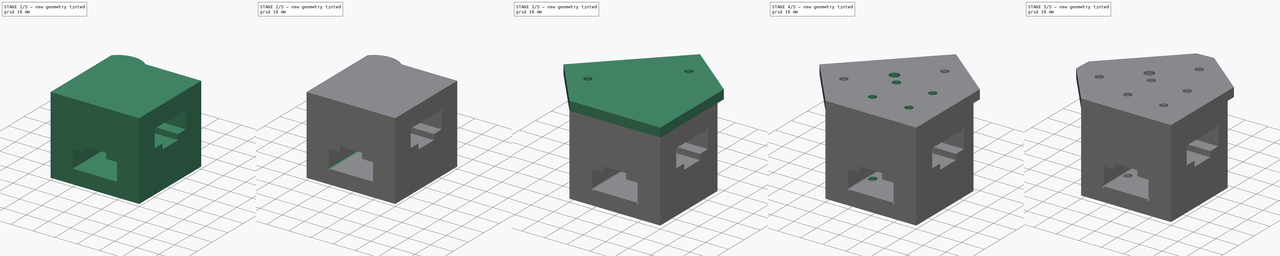
[diagram: build sequence overview — one tinted view per stage of 5, left to right]
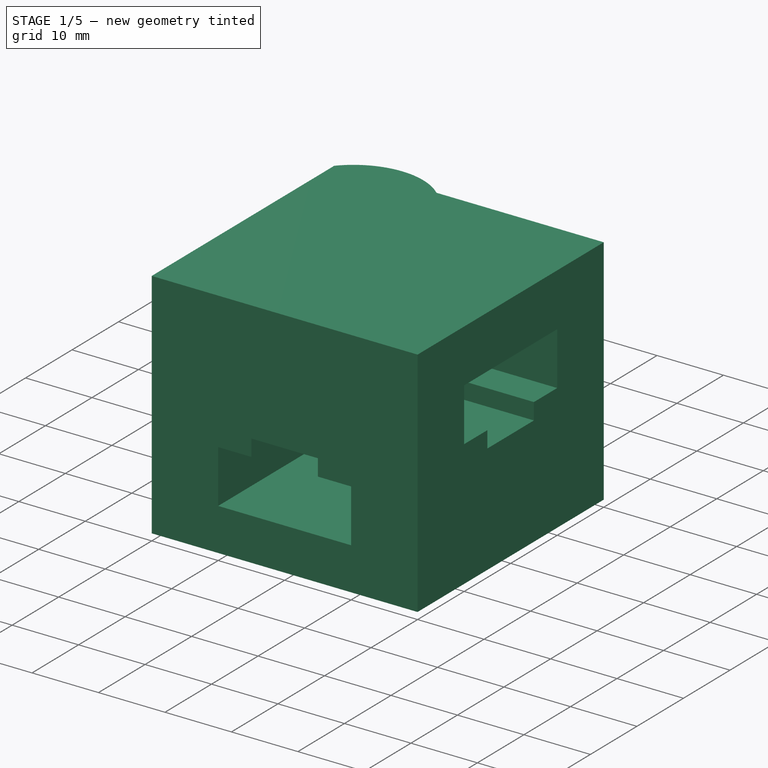
[diagram: stage 1 of 5 — iso view after this stage's code; geometry added in this stage tinted green]
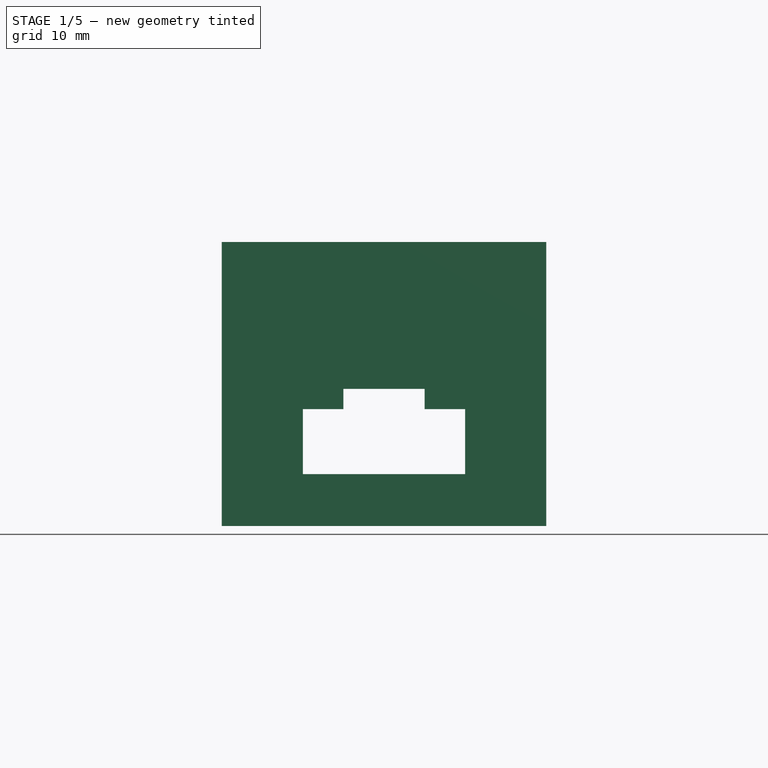
[diagram: stage 1 of 5 — front view after this stage's code; geometry added in this stage tinted green]
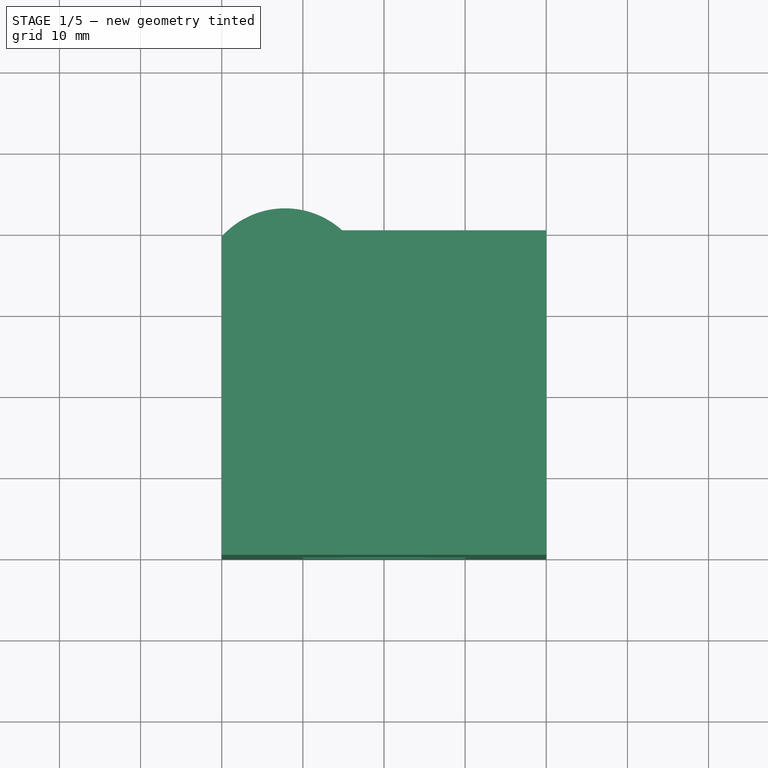
[diagram: stage 1 of 5 — top view after this stage's code; geometry added in this stage tinted green]
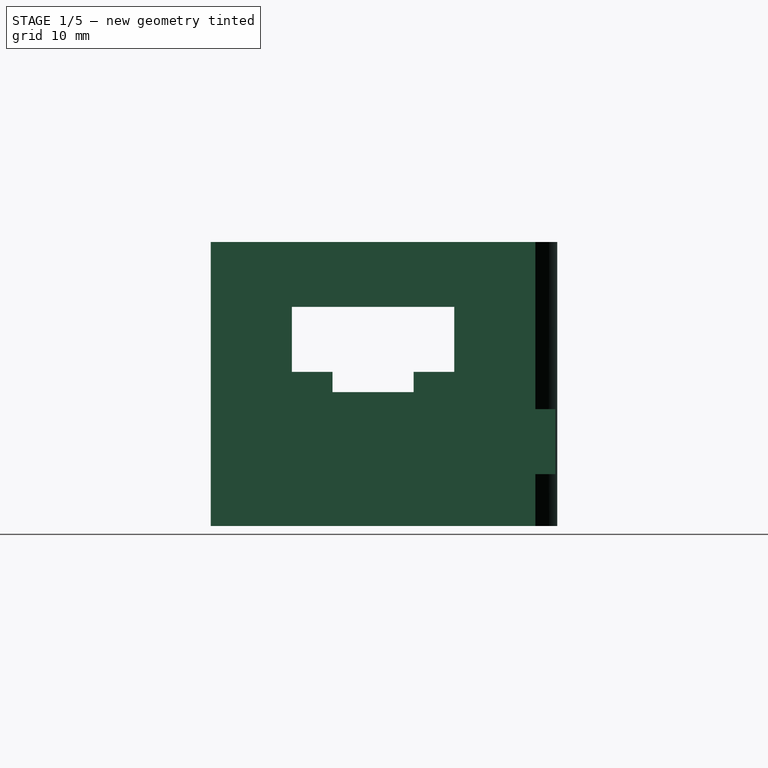
[diagram: stage 1 of 5 — right view after this stage's code; geometry added in this stage tinted green]
FCSTD DOCUMENT  (FreeCAD 0.19R)
Label: ToolHeadVoron3
License: All rights reserved
LicenseURL: http://en.wikipedia.org/wiki/All_rights_reserved
objects: Sketcher::SketchObject×16, PartDesign::Pocket×12, PartDesign::Pad×2, PartDesign::Chamfer×1, PartDesign::Body×1
note: 47 computed .brp shape members not serialized (recipe doc carries the construction recipe); baked Part::Feature solids carry a one-line shape summary decoded from their .brp

FEATURE [Sketcher::SketchObject] Sketch  label="Body001"
  FullyConstrained = true
  MapMode = 5
  Support = -> [XY_Plane]
  sketch-geometry (7):
    g0: LineSegment StartX=20 StartY=20 StartZ=0 EndX=20 EndY=-20 EndZ=0
    g1: LineSegment StartX=20 StartY=-20 StartZ=0 EndX=-20 EndY=-20 EndZ=0
    g2: LineSegment StartX=-20 StartY=-20 StartZ=0 EndX=-20 EndY=19.2241 EndZ=0
    g3: Circle CenterX=-12.1976 CenterY=12.1976 CenterZ=0 NormalX=0 NormalY=0 NormalZ=1 AngleXU=0 Radius=2.1
    g4: LineSegment StartX=-12.1976 StartY=12.1976 StartZ=0 EndX=0 EndY=0 EndZ=0
    g5: ArcOfCircle CenterX=-12.1976 CenterY=12.1976 CenterZ=0 NormalX=0 NormalY=0 NormalZ=1 AngleXU=0 Radius=10.5 StartAngle=0.837671 EndAngle=2.40847
    g6: LineSegment StartX=-5.17104 StartY=20 StartZ=0 EndX=20 EndY=20 EndZ=0
  constraints (20):
    c: Coincident(g6,g0)
    c: Coincident(g0,g1)
    c: Coincident(g1,g2)
    c: Horizontal(g1)
    c: Vertical(g0)
    c: Vertical(g2)
    c: Distance(g-1,g3) = 17.25
    c: Coincident(g4,g3)
    c: Coincident(g4,g-1)
    c: Angle(g4) = -0.785398
    c: Diameter(g3) = 4.2
    c: Coincident(g5,g3)
    c: Diameter(g5) = 21
    c: DistanceX(g6) = 20
    c: DistanceY(g0) = -20
    c: DistanceX(g1) = -20
    c: Coincident(g6,g5)
    c: Horizontal(g6)
    c: DistanceY(g0) = 20
    c: Coincident(g5,g2)
FEATURE [PartDesign::Pad] Pad
  Direction = (1,1,1)
  Length = 35
  Length2 = 10
  Profile = -> Sketch
  Reversed = true
  Type = 0
FEATURE [Sketcher::SketchObject] Sketch001  label="RailHole"
  FullyConstrained = true
  MapMode = 5
  Placement = pos=(-20,0,0) rot=(0.57735,-0.57735,-0.57735;2.0944rad)
  Support = -> [Pad]
  sketch-geometry (8):
    g0: LineSegment StartX=-10 StartY=-8 StartZ=0 EndX=10 EndY=-8 EndZ=0
    g1: LineSegment StartX=10 StartY=-8 StartZ=0 EndX=10 EndY=-16 EndZ=0
    g2: LineSegment StartX=-10 StartY=-16 StartZ=0 EndX=-10 EndY=-8 EndZ=0
    g3: LineSegment StartX=10 StartY=-16 StartZ=0 EndX=5 EndY=-16 EndZ=0
    g4: LineSegment StartX=5 StartY=-16 StartZ=0 EndX=5 EndY=-18.5 EndZ=0
    g5: LineSegment StartX=5 StartY=-18.5 StartZ=0 EndX=-5 EndY=-18.5 EndZ=0
    g6: LineSegment StartX=-5 StartY=-18.5 StartZ=0 EndX=-5 EndY=-16 EndZ=0
    g7: LineSegment StartX=-5 StartY=-16 StartZ=0 EndX=-10 EndY=-16 EndZ=0
  constraints (21):
    c: Coincident(g0,g1)
    c: Coincident(g2,g0)
    c: Vertical(g1)
    c: Vertical(g2)
    c: DistanceY(g0) = -8
    c: Distance(g1) = 8
    c: Distance(g0) = 20
    c: Symmetric(g0,g0,g-2)
    c: Coincident(g1,g3)
    c: Horizontal(g3)
    c: Coincident(g3,g4)
    c: Coincident(g4,g5)
    c: Coincident(g5,g6)
    c: Coincident(g6,g7)
    c: Coincident(g7,g2)
    c: Symmetric(g3,g6,g-2)
    c: Equal(g2,g1)
    c: Symmetric(g4,g5,g-2)
    c: Vertical(g4)
    c: Distance(g4) = 2.5
    c: Distance(g5) = 10
FEATURE [PartDesign::Pocket] Pocket
  BaseFeature = -> Pad
  Length = 5
  Length2 = 100
  Profile = -> Sketch001
  Type = 1
FEATURE [Sketcher::SketchObject] Sketch003  label="Xboltpattern"
  FullyConstrained = true
  MapMode = 5
  Placement = pos=(0,0,4) rot=(0,0,1;0rad)
  sketch-geometry (8):
    g0: Circle CenterX=-8 CenterY=7.5 CenterZ=0 NormalX=0 NormalY=0 NormalZ=1 AngleXU=0 Radius=1.65
    g1: Circle CenterX=8 CenterY=7.5 CenterZ=0 NormalX=0 NormalY=0 NormalZ=1 AngleXU=0 Radius=1.65
    g2: Circle CenterX=-8 CenterY=-7.5 CenterZ=0 NormalX=0 NormalY=0 NormalZ=1 AngleXU=0 Radius=1.65
    g3: Circle CenterX=8 CenterY=-7.5 CenterZ=0 NormalX=0 NormalY=0 NormalZ=1 AngleXU=0 Radius=1.65
    g4: LineSegment StartX=-8 StartY=7.5 StartZ=0 EndX=8 EndY=7.5 EndZ=0
    g5: LineSegment StartX=8 StartY=7.5 StartZ=0 EndX=8 EndY=-7.5 EndZ=0
    g6: LineSegment StartX=8 StartY=-7.5 StartZ=0 EndX=-8 EndY=-7.5 EndZ=0
    g7: LineSegment StartX=-8 StartY=-7.5 StartZ=0 EndX=-8 EndY=7.5 EndZ=0
  constraints (19):
    c: Diameter(g0) = 3.3
    c: Equal(g0,g1)
    c: Equal(g0,g2)
    c: Equal(g0,g3)
    c: Distance(g0,g1) = 16
    c: Distance(g1,g3) = 15
    c: Coincident(g4,g0)
    c: Coincident(g4,g1)
    c: Horizontal(g4)
    c: Coincident(g4,g5)
    c: Coincident(g5,g3)
    c: Vertical(g5)
    c: Coincident(g5,g6)
    c: Coincident(g6,g2)
    c: Coincident(g6,g7)
    c: Coincident(g7,g4)
    c: Symmetric(g2,g1,g-1)
    c: Equal(g7,g5)
    c: Equal(g6,g4)
FEATURE [Sketcher::SketchObject] Sketch007  label="ExtruderPlatform"
  FullyConstrained = false
  MapMode = 5
  sketch-geometry (7):
    g0: LineSegment StartX=20 StartY=-20 StartZ=0 EndX=20 EndY=20 EndZ=0
    g1: LineSegment StartX=20 StartY=20 StartZ=0 EndX=-4.24264 EndY=39.598 EndZ=0
    g2: LineSegment StartX=-4.24264 StartY=39.598 StartZ=0 EndX=-39.598 EndY=4.24264 EndZ=0
    g3: LineSegment StartX=-39.598 StartY=4.24264 StartZ=0 EndX=-20 EndY=-20 EndZ=0
    g4: LineSegment StartX=-20 StartY=-20 StartZ=0 EndX=20 EndY=-20 EndZ=0
    g5: LineSegment StartX=0 StartY=0 StartZ=0 EndX=-67.8895 EndY=67.8895 EndZ=0
    g6: Circle CenterX=-12.0208 CenterY=12.0208 CenterZ=0 NormalX=0 NormalY=0 NormalZ=1 AngleXU=0 Radius=2.125
  constraints (14):
    c: Coincident(g0,g1)
    c: Coincident(g1,g2)
    c: Coincident(g2,g3)
    c: Coincident(g3,g4)
    c: Coincident(g4,g0)
    c: Angle(g2) = -2.35619
    c: Coincident(g5,g-1)
    c: Angle(g5) = 2.35619
    c: Symmetric(g1,g2,g5)
    c: Diameter(g6) = 4.25
    c: PointOnObject(g6,g5)
    c: Distance(g-1,g6) = 17
    c: Distance(g2) = 50
    c: Distance(g6,g2) = 14
FEATURE [Sketcher::SketchObject] Sketch008  label="ExtruderHole"
  FullyConstrained = false
  MapMode = 5
  Placement = pos=(0,0,4) rot=(0,0,1;0rad)
  sketch-geometry (2):
    g0: LineSegment StartX=0 StartY=0 StartZ=0 EndX=-54.6242 EndY=54.6242 EndZ=0
    g1: Circle CenterX=-12.1976 CenterY=12.1976 CenterZ=0 NormalX=0 NormalY=0 NormalZ=1 AngleXU=0 Radius=2.1
  constraints (5):
    c: Coincident(g0,g-1)
    c: Angle(g0) = 2.35619
    c: PointOnObject(g1,g0)
    c: Distance(g-1,g1) = 17.25
    c: Diameter(g1) = 4.2
FEATURE [Sketcher::SketchObject] Sketch009  label="reference"
  FullyConstrained = false
  MapMode = 5
  Placement = pos=(0,0,-25) rot=(1,0,0;3.14159rad)
  sketch-geometry (2):
    g0: Circle CenterX=-12.0208 CenterY=-12.0208 CenterZ=0 NormalX=0 NormalY=0 NormalZ=1 AngleXU=0 Radius=10
    g1: LineSegment StartX=0 StartY=0 StartZ=0 EndX=-27.7674 EndY=-27.7674 EndZ=0
  constraints (5):
    c: Diameter(g0) = 20
    c: Coincident(g1,g-1)
    c: Angle(g1) = -2.35619
    c: PointOnObject(g0,g1)
    c: Distance(g0,g1) = 17
FEATURE [Sketcher::SketchObject] Sketch010  label="reference2"
  FullyConstrained = false
  MapMode = 5
  Placement = pos=(0,0,-37) rot=(1,0,0;3.14159rad)
  sketch-geometry (2):
    g0: Circle CenterX=-12.0208 CenterY=-12.0208 CenterZ=0 NormalX=0 NormalY=0 NormalZ=1 AngleXU=0 Radius=8
    g1: LineSegment StartX=0 StartY=0 StartZ=0 EndX=-38.1566 EndY=-38.1566 EndZ=0
  constraints (5):
    c: Diameter(g0) = 16
    c: Coincident(g1,g-1)
    c: Angle(g1) = -2.35619
    c: Distance(g0,g1) = 17
    c: PointOnObject(g0,g1)
FEATURE [Sketcher::SketchObject] Sketch017  label="VoronHoles3"
  FullyConstrained = true
  MapMode = 5
  Placement = pos=(0,0,-22) rot=(0,0,1;0rad)
  sketch-geometry (10):
    g0: Circle CenterX=-6.54074 CenterY=17.8544 CenterZ=0 NormalX=0 NormalY=0 NormalZ=1 AngleXU=0 Radius=1.375
    g1: Circle CenterX=-17.8544 CenterY=6.54074 CenterZ=0 NormalX=0 NormalY=0 NormalZ=1 AngleXU=0 Radius=1.375
    g2: Circle CenterX=-6.54074 CenterY=6.54074 CenterZ=0 NormalX=0 NormalY=0 NormalZ=1 AngleXU=0 Radius=1.375
    g3: Circle CenterX=-17.8544 CenterY=17.8544 CenterZ=0 NormalX=0 NormalY=0 NormalZ=1 AngleXU=0 Radius=1.375
    g4: LineSegment StartX=-6.54074 StartY=17.8544 StartZ=0 EndX=-6.54074 EndY=6.54074 EndZ=0
    g5: LineSegment StartX=-6.54074 StartY=6.54074 StartZ=0 EndX=-17.8544 EndY=6.54074 EndZ=0
    g6: LineSegment StartX=-17.8544 StartY=6.54074 StartZ=0 EndX=-17.8544 EndY=17.8544 EndZ=0
    g7: LineSegment StartX=-17.8544 StartY=17.8544 StartZ=0 EndX=-6.54074 EndY=17.8544 EndZ=0
    g8: LineSegment StartX=0 StartY=0 StartZ=0 EndX=-37.1726 EndY=37.1726 EndZ=0
    g9: Circle CenterX=-12.1976 CenterY=12.1976 CenterZ=0 NormalX=0 NormalY=0 NormalZ=1 AngleXU=0 Radius=0.77
  constraints (25):
    c: Coincident(g4,g0)
    c: Coincident(g4,g2)
    c: Coincident(g4,g5)
    c: Coincident(g5,g1)
    c: Coincident(g5,g6)
    c: Coincident(g6,g3)
    c: Coincident(g6,g7)
    c: Coincident(g7,g4)
    c: Equal(g4,g7)
    c: Equal(g7,g6)
    c: Equal(g6,g5)
    c: Coincident(g8,g-1)
    c: PointOnObject(g9,g8)
    c: Distance(g-1,g9) = 17.25
    c: Diameter(g1) = 2.75
    c: Equal(g1,g3)
    c: Equal(g1,g0)
    c: Equal(g1,g2)
    c: Symmetric(g0,g1,g9)
    c: Distance(g2,g3) = 16
    c: Angle(g8) = 2.35619
    c: PointOnObject(g2,g8)
    c: Perpendicular(g7,g4)
    c: Distance(g8) = 52.57
    c: Diameter(g9) = 1.54
FEATURE [Sketcher::SketchObject] Sketch019  label="RailHole2"
  FullyConstrained = true
  MapMode = 5
  Placement = pos=(0,-20,0) rot=(1,0,0;1.5708rad)
  Support = -> [Pocket]
  sketch-geometry (8):
    g0: LineSegment StartX=-10 StartY=-20.6 StartZ=0 EndX=-10 EndY=-28.6 EndZ=0
    g1: LineSegment StartX=-10 StartY=-28.6 StartZ=0 EndX=10 EndY=-28.6 EndZ=0
    g2: LineSegment StartX=10 StartY=-28.6 StartZ=0 EndX=10 EndY=-20.6 EndZ=0
    g3: LineSegment StartX=10 StartY=-20.6 StartZ=0 EndX=5 EndY=-20.6 EndZ=0
    g4: LineSegment StartX=5 StartY=-20.6 StartZ=0 EndX=5 EndY=-18.1 EndZ=0
    g5: LineSegment StartX=5 StartY=-18.1 StartZ=0 EndX=-5 EndY=-18.1 EndZ=0
    g6: LineSegment StartX=-5 StartY=-18.1 StartZ=0 EndX=-5 EndY=-20.6 EndZ=0
    g7: LineSegment StartX=-5 StartY=-20.6 StartZ=0 EndX=-10 EndY=-20.6 EndZ=0
  constraints (22):
    c: Vertical(g0)
    c: Coincident(g0,g1)
    c: Horizontal(g1)
    c: Coincident(g1,g2)
    c: Vertical(g2)
    c: Coincident(g2,g3)
    c: Horizontal(g3)
    c: Coincident(g3,g4)
    c: Vertical(g4)
    c: Coincident(g4,g5)
    c: Horizontal(g5)
    c: Coincident(g5,g6)
    c: Vertical(g6)
    c: Coincident(g6,g7)
    c: Coincident(g7,g0)
    c: Symmetric(g2,g0,g-2)
    c: Distance(g1) = 20
    c: Distance(g2) = 8
    c: Distance(g4) = 2.5
    c: Distance(g5) = 10
    c: Symmetric(g6,g3,g-2)
    c: DistanceY(g1) = -28.6
FEATURE [Sketcher::SketchObject] Sketch021  label="InternalTri"
  FullyConstrained = true
  MapMode = 5
  Placement = pos=(0,-3e-15,-12) rot=(0,0,1;0rad)
  sketch-geometry (4):
    g0: LineSegment StartX=-10 StartY=10 StartZ=0 EndX=10 EndY=10 EndZ=0
    g1: LineSegment StartX=10 StartY=10 StartZ=0 EndX=10 EndY=-10 EndZ=0
    g2: LineSegment StartX=10 StartY=-10 StartZ=0 EndX=-10 EndY=-10 EndZ=0
    g3: LineSegment StartX=-10 StartY=-10 StartZ=0 EndX=-10 EndY=10 EndZ=0
  constraints (11):
    c: Coincident(g0,g1)
    c: Coincident(g1,g2)
    c: Coincident(g2,g3)
    c: Coincident(g3,g0)
    c: Horizontal(g0)
    c: Horizontal(g2)
    c: Vertical(g1)
    c: Vertical(g3)
    c: Symmetric(g1,g0,g-1)
    c: Equal(g1,g0)
    c: Distance(g1) = 20
FEATURE [PartDesign::Pocket] Pocket001
  BaseFeature = -> Pocket
  Length = 5
  Length2 = 100
  Profile = -> Sketch019
  Type = 1
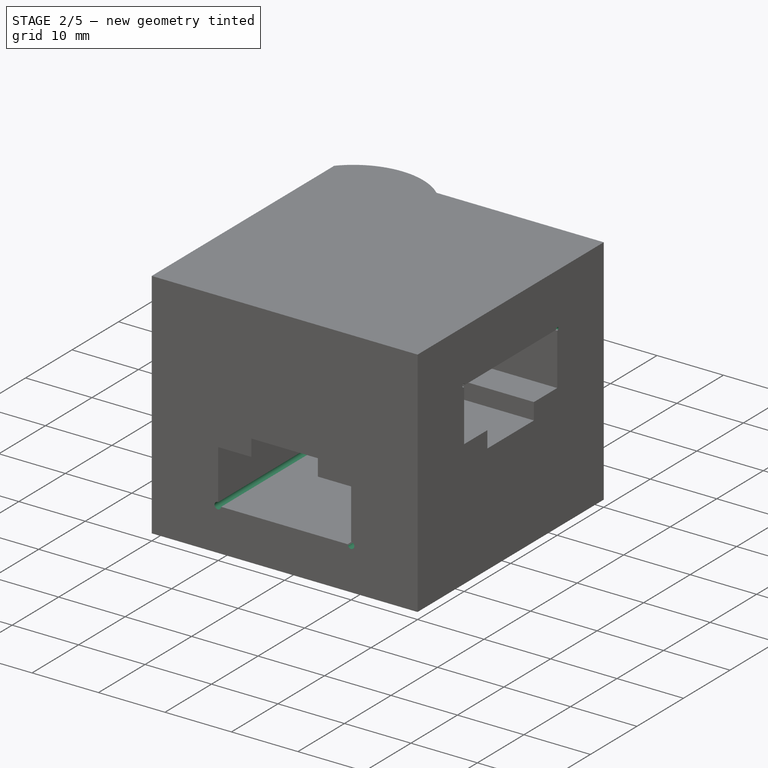
[diagram: stage 2 of 5 — iso view after this stage's code; geometry added in this stage tinted green]
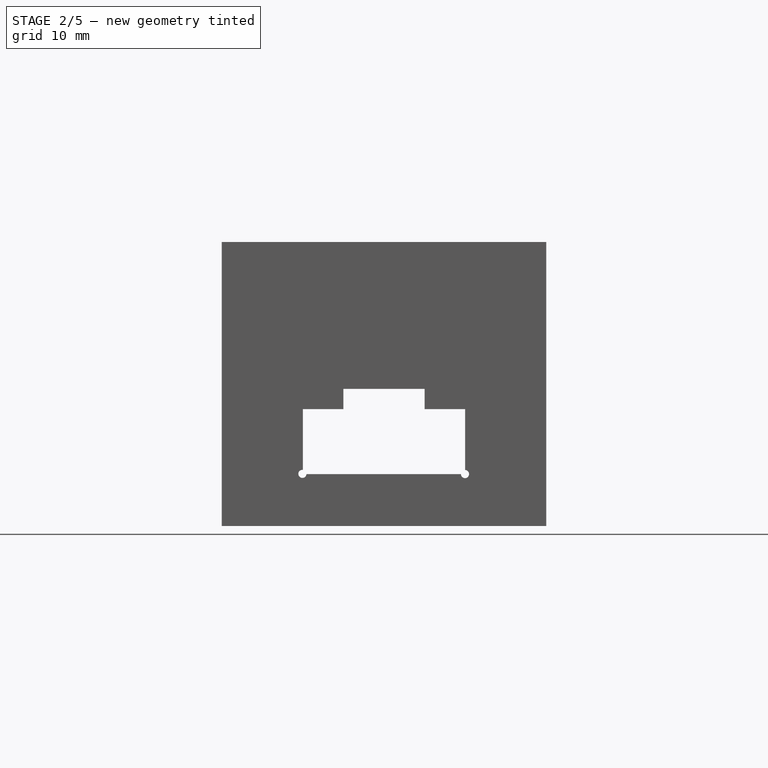
[diagram: stage 2 of 5 — front view after this stage's code; geometry added in this stage tinted green]
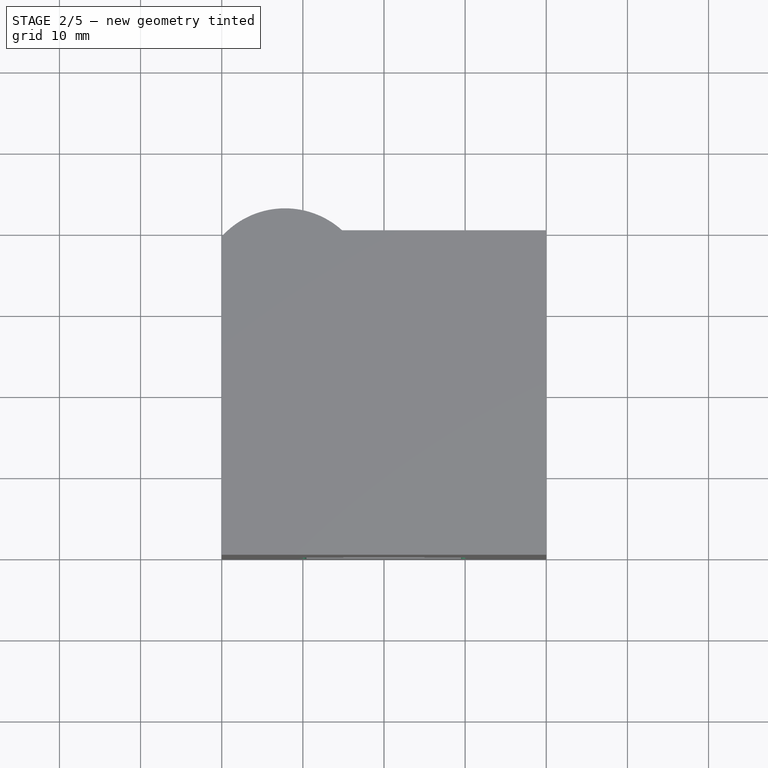
[diagram: stage 2 of 5 — top view after this stage's code; geometry added in this stage tinted green]
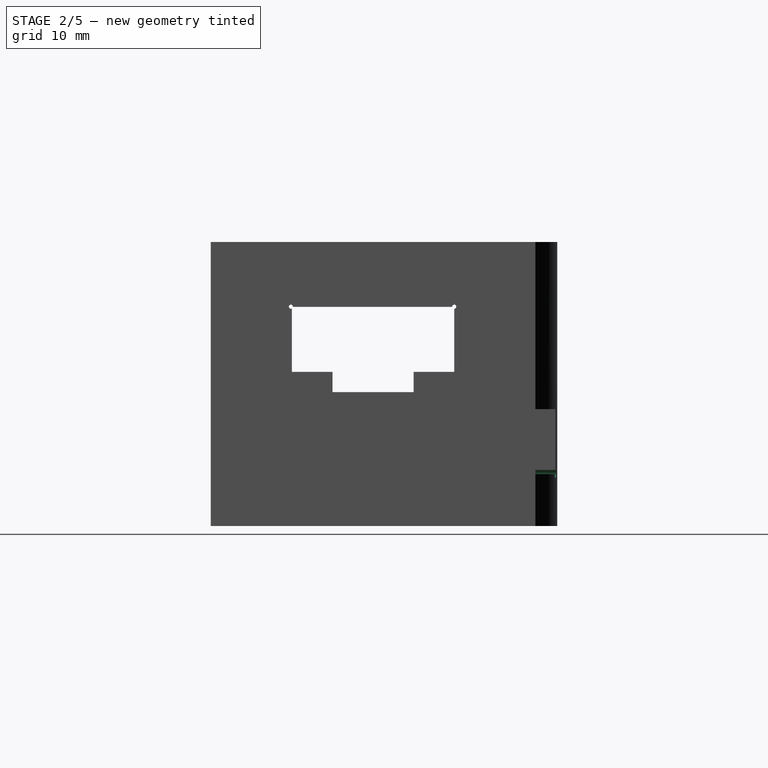
[diagram: stage 2 of 5 — right view after this stage's code; geometry added in this stage tinted green]
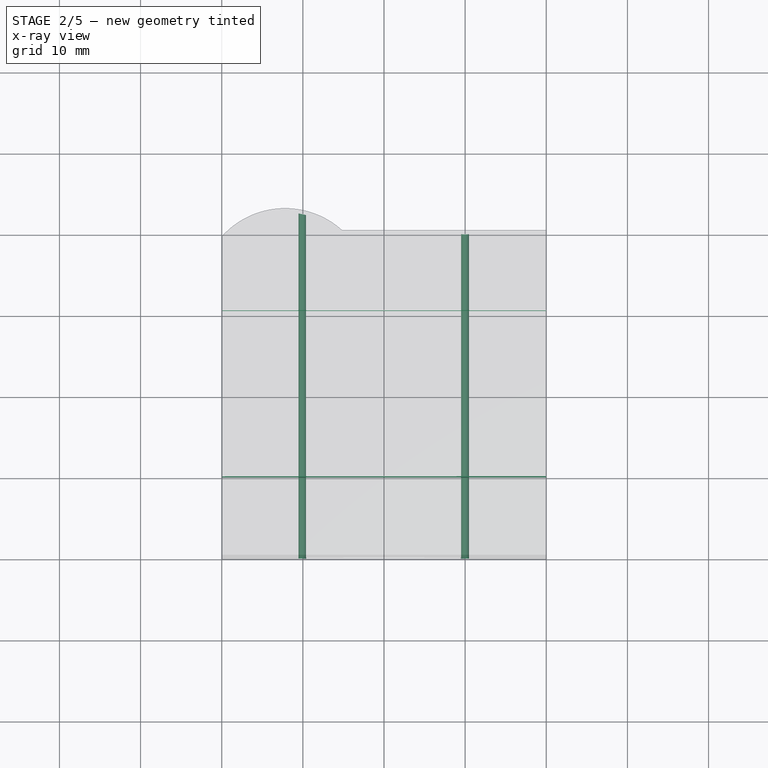
[diagram: stage 2 of 5 — x-ray composite at the top view; earlier geometry ghosted, this stage's added geometry solid]
FEATURE [PartDesign::Pocket] Pocket002
  BaseFeature = -> Pocket001
  Length = 3
  Length2 = 2
  Profile = -> Sketch021
  Type = 4
FEATURE [Sketcher::SketchObject] Sketch016  label="Xcorners"
  FullyConstrained = false
  MapMode = 5
  Placement = pos=(0,-20,0) rot=(1,0,0;1.5708rad)
  Support = -> [Pocket002]
  sketch-geometry (2):
    g0: Circle CenterX=9.98366 CenterY=-28.603 CenterZ=0 NormalX=0 NormalY=0 NormalZ=1 AngleXU=0 Radius=0.5
    g1: Circle CenterX=-10.0531 CenterY=-28.5762 CenterZ=0 NormalX=0 NormalY=0 NormalZ=1 AngleXU=0 Radius=0.5
  constraints (2):
    c: Diameter(g1) = 1
    c: Equal(g1,g0)
FEATURE [PartDesign::Pocket] Pocket003
  BaseFeature = -> Pocket002
  Length = 5
  Length2 = 100
  Profile = -> Sketch016
  Type = 1
FEATURE [Sketcher::SketchObject] Sketch015  label="Ycorners"
  FullyConstrained = false
  MapMode = 5
  Placement = pos=(-20,0,0) rot=(0.57735,-0.57735,-0.57735;2.0944rad)
  Support = -> [Pocket003]
  sketch-geometry (2):
    g0: Circle CenterX=-10.0077 CenterY=-7.97207 CenterZ=0 NormalX=0 NormalY=0 NormalZ=1 AngleXU=0 Radius=0.25
    g1: Circle CenterX=10.133 CenterY=-7.97207 CenterZ=0 NormalX=0 NormalY=0 NormalZ=1 AngleXU=0 Radius=0.25
  constraints (2):
    c: Diameter(g1) = 0.5
    c: Equal(g1,g0)
FEATURE [Sketcher::SketchObject] Sketch024  label="hgxLITEholes"
  FullyConstrained = true
  MapMode = 5
  Placement = pos=(0,0,4) rot=(0,0,1;0rad)
  sketch-geometry (4):
    g0: Circle CenterX=0.883883 CenterY=25.2791 CenterZ=0 NormalX=0 NormalY=0 NormalZ=1 AngleXU=0 Radius=1.65
    g1: Circle CenterX=-25.2791 CenterY=-0.883883 CenterZ=0 NormalX=0 NormalY=0 NormalZ=1 AngleXU=0 Radius=1.65
    g2: LineSegment StartX=0 StartY=0 StartZ=0 EndX=-12.1976 EndY=12.1976 EndZ=0
    g3: LineSegment StartX=-25.2791 StartY=-0.883883 StartZ=0 EndX=0.883883 EndY=25.2791 EndZ=0
  constraints (10):
    c: Diameter(g0) = 3.3
    c: Equal(g0,g1)
    c: Coincident(g2,g-1)
    c: Angle(g2) = 2.35619
    c: Distance(g2) = 17.25
    c: Coincident(g3,g1)
    c: Coincident(g3,g0)
    c: Distance(g3) = 37
    c: Perpendicular(g3,g2)
    c: Symmetric(g0,g1,g2)
FEATURE [PartDesign::Pocket] Pocket004
  BaseFeature = -> Pocket003
  Length = 5
  Length2 = 100
  Profile = -> Sketch015
  Type = 1
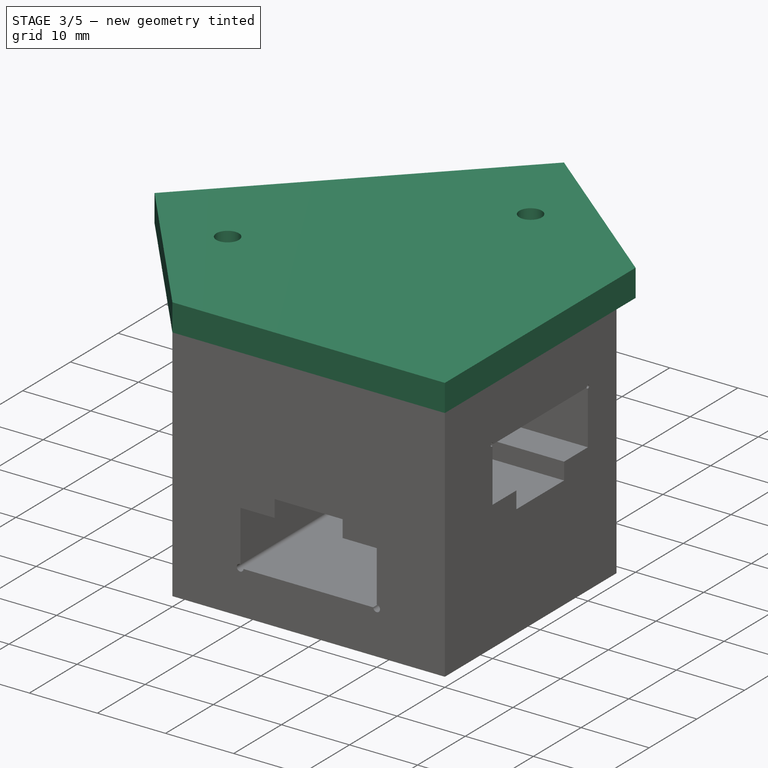
[diagram: stage 3 of 5 — iso view after this stage's code; geometry added in this stage tinted green]
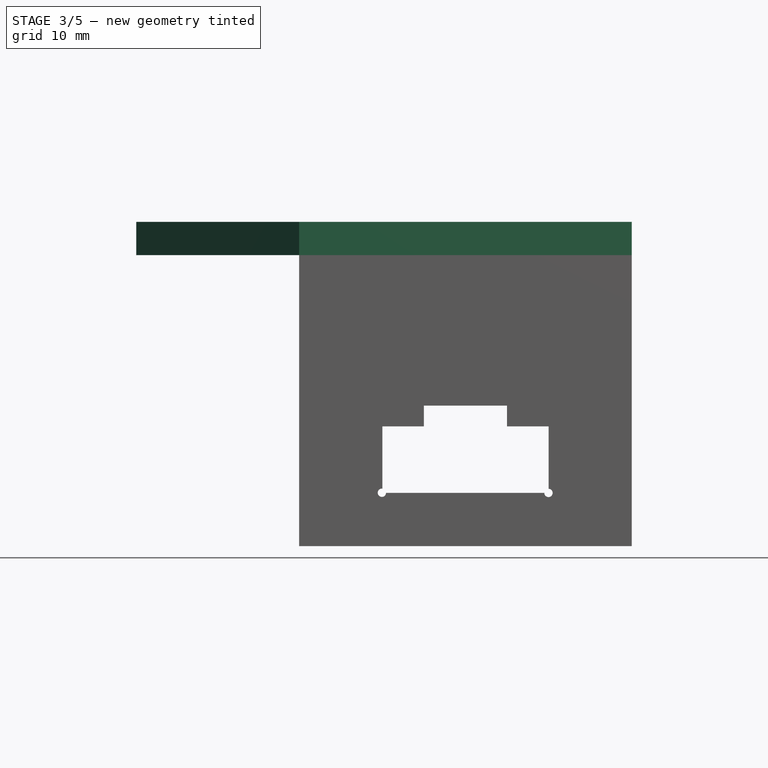
[diagram: stage 3 of 5 — front view after this stage's code; geometry added in this stage tinted green]
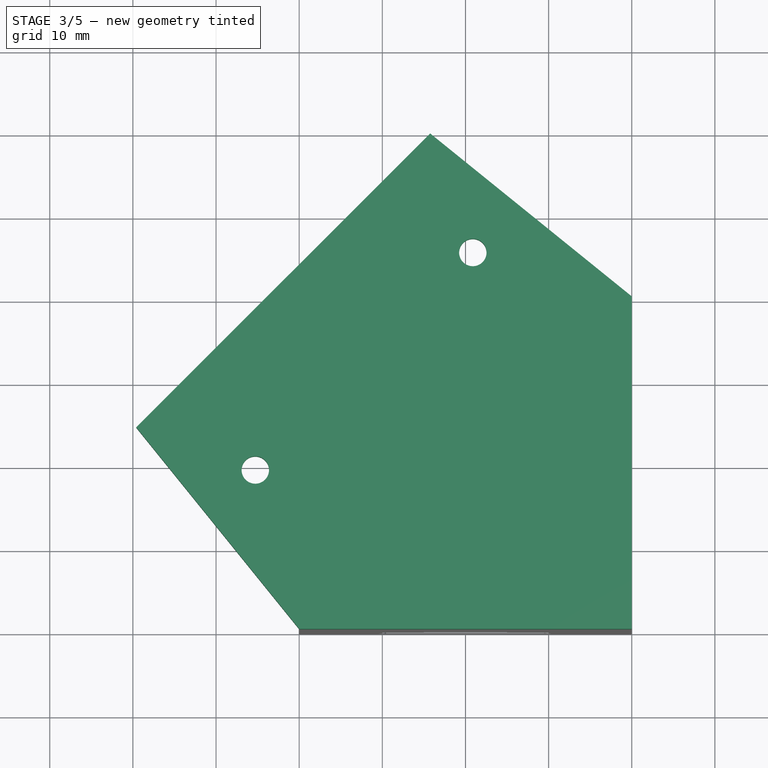
[diagram: stage 3 of 5 — top view after this stage's code; geometry added in this stage tinted green]
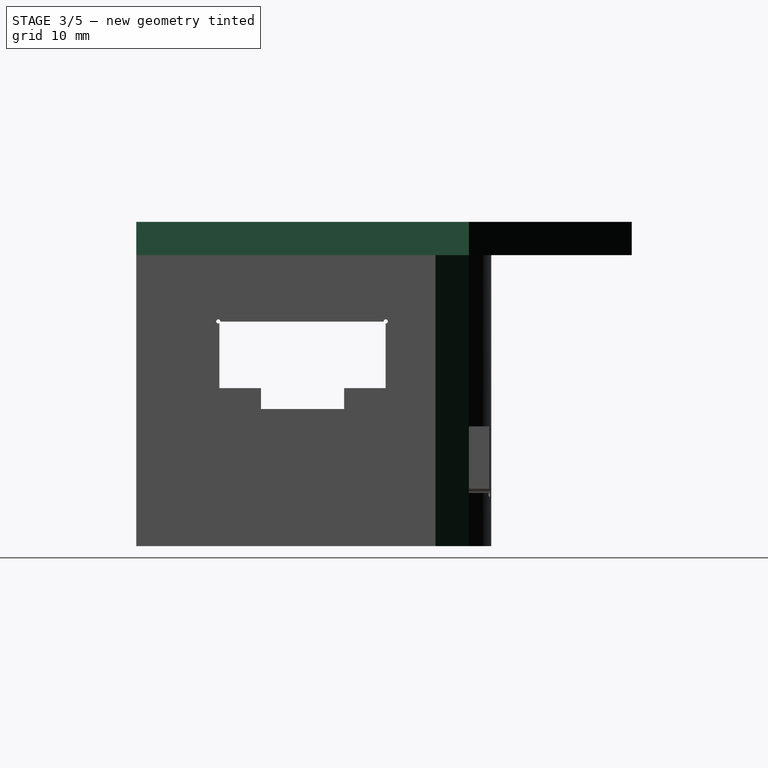
[diagram: stage 3 of 5 — right view after this stage's code; geometry added in this stage tinted green]
FEATURE [Sketcher::SketchObject] Sketch025  label="CornerClip"
  FullyConstrained = false
  MapMode = 5
  Placement = pos=(0,0,2.5) rot=(0,0,1;0rad)
  sketch-geometry (4):
    g0: LineSegment StartX=10.3365 StartY=29.7868 StartZ=0 EndX=28.6764 EndY=3.59479 EndZ=0
    g1: LineSegment StartX=28.6764 StartY=3.59479 StartZ=0 EndX=36.7565 EndY=10.9883 EndZ=0
    g2: LineSegment StartX=36.7565 StartY=10.9883 StartZ=0 EndX=24.5949 EndY=30.3038 EndZ=0
    g3: LineSegment StartX=24.5949 StartY=30.3038 StartZ=0 EndX=10.3365 EndY=29.7868 EndZ=0
  constraints (5):
    c: Coincident(g0,g1)
    c: Coincident(g1,g2)
    c: Coincident(g2,g3)
    c: Coincident(g3,g0)
    c: Angle(g0) = -0.959931
FEATURE [PartDesign::Pocket] Pocket005
  BaseFeature = -> Pocket004
  Length = 5
  Length2 = 100
  Profile = -> Sketch025
  Type = 1
FEATURE [PartDesign::Pad] Pad001
  BaseFeature = -> Pocket005
  Direction = (1,1,1)
  Length = 4
  Length2 = 100
  Profile = -> Sketch007
  Type = 0
FEATURE [PartDesign::Pocket] Pocket006
  BaseFeature = -> Pad001
  Length = 5
  Length2 = 100
  Profile = -> Sketch024
  Type = 1
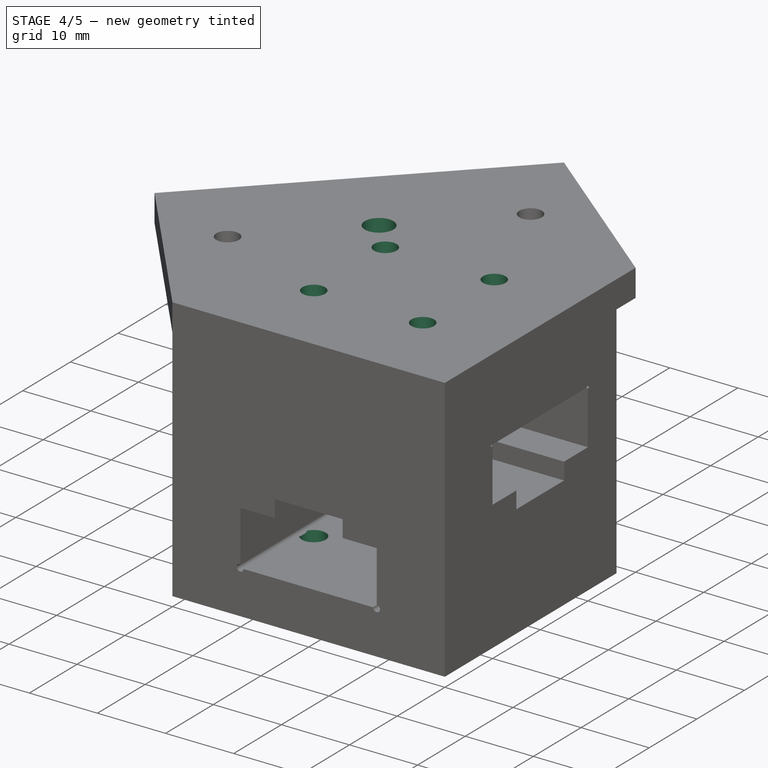
[diagram: stage 4 of 5 — iso view after this stage's code; geometry added in this stage tinted green]
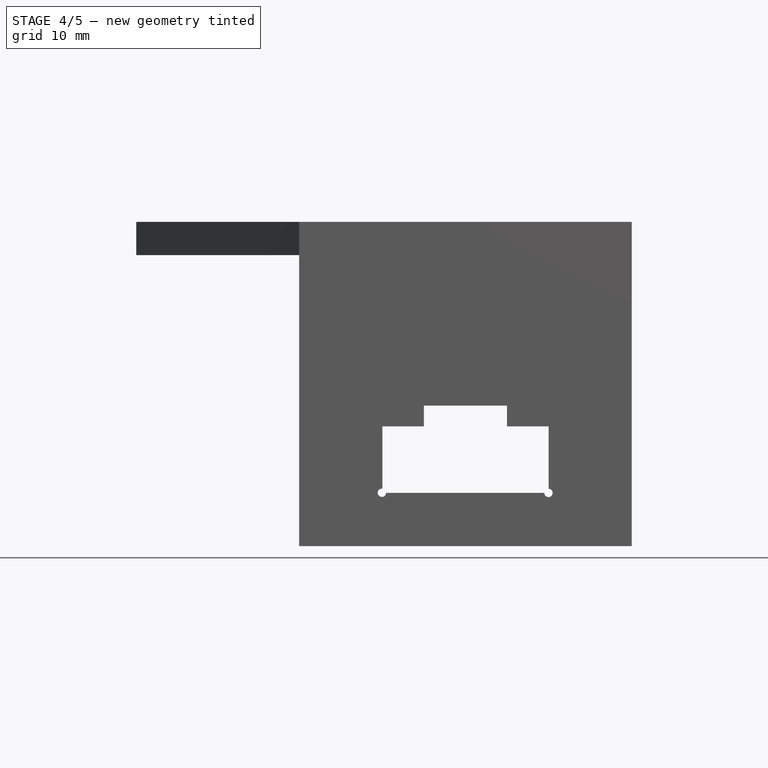
[diagram: stage 4 of 5 — front view after this stage's code; geometry added in this stage tinted green]
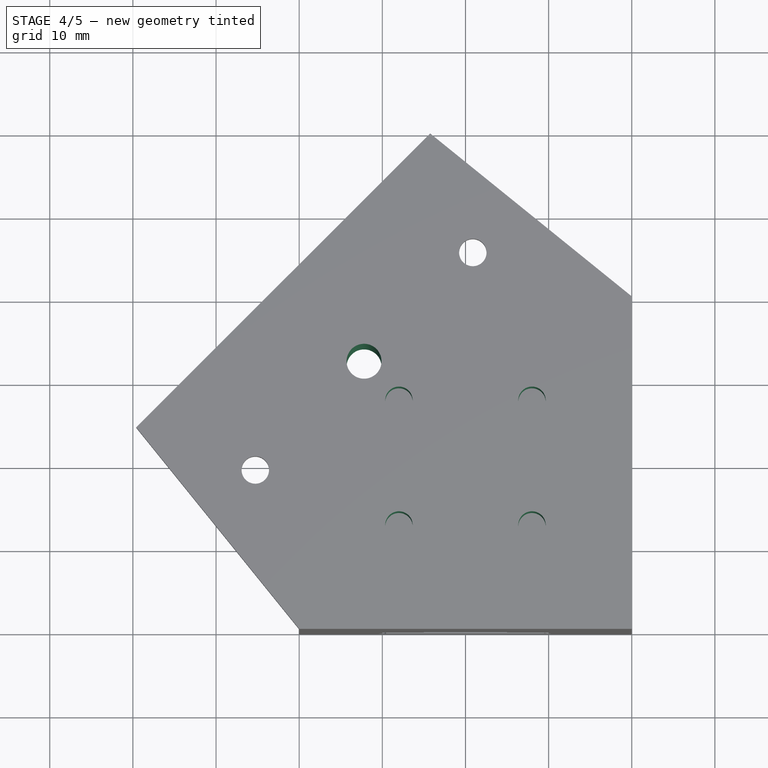
[diagram: stage 4 of 5 — top view after this stage's code; geometry added in this stage tinted green]
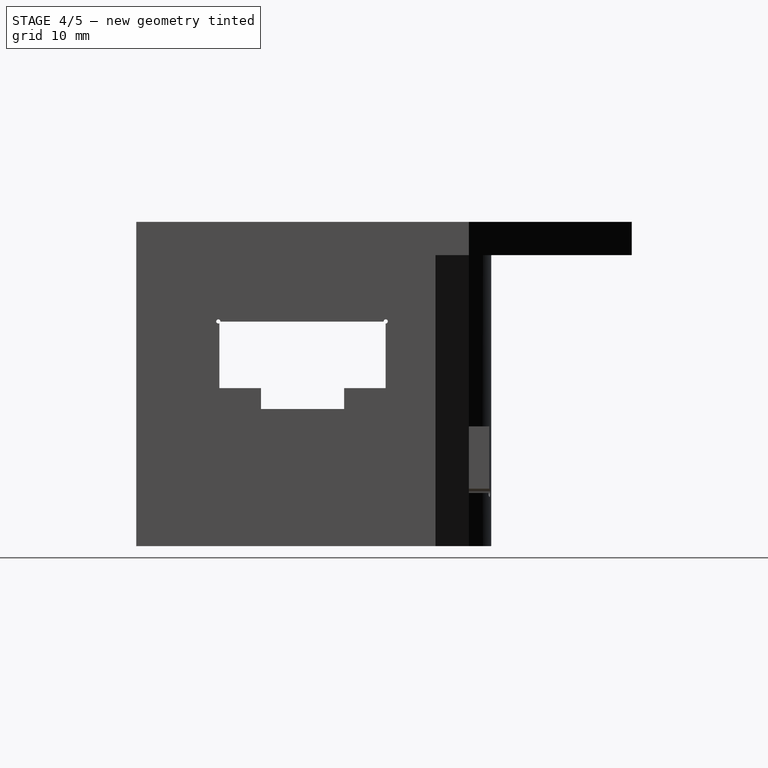
[diagram: stage 4 of 5 — right view after this stage's code; geometry added in this stage tinted green]
FEATURE [PartDesign::Pocket] Pocket007
  BaseFeature = -> Pocket006
  Length = 5
  Length2 = 100
  Profile = -> Sketch008
  Type = 1
FEATURE [PartDesign::Pocket] Pocket008
  BaseFeature = -> Pocket007
  Length = 16
  Length2 = 100
  Profile = -> Sketch003
  Type = 0
FEATURE [Sketcher::SketchObject] Sketch004  label="Yboltpattern"
  FullyConstrained = true
  MapMode = 5
  Placement = pos=(0,0,-35) rot=(1,0,0;3.14159rad)
  Support = -> [Pocket008]
  sketch-geometry (8):
    g0: Circle CenterX=-8 CenterY=7.5 CenterZ=0 NormalX=0 NormalY=0 NormalZ=1 AngleXU=0 Radius=1.75
    g1: Circle CenterX=8 CenterY=7.5 CenterZ=0 NormalX=0 NormalY=0 NormalZ=1 AngleXU=0 Radius=1.75
    g2: Circle CenterX=-8 CenterY=-7.5 CenterZ=0 NormalX=0 NormalY=0 NormalZ=1 AngleXU=0 Radius=1.75
    g3: Circle CenterX=8 CenterY=-7.5 CenterZ=0 NormalX=0 NormalY=0 NormalZ=1 AngleXU=0 Radius=1.75
    g4: LineSegment StartX=-8 StartY=7.5 StartZ=0 EndX=8 EndY=7.5 EndZ=0
    g5: LineSegment StartX=8 StartY=7.5 StartZ=0 EndX=8 EndY=-7.5 EndZ=0
    g6: LineSegment StartX=8 StartY=-7.5 StartZ=0 EndX=-8 EndY=-7.5 EndZ=0
    g7: LineSegment StartX=-8 StartY=-7.5 StartZ=0 EndX=-8 EndY=7.5 EndZ=0
  constraints (18):
    c: Diameter(g0) = 3.5
    c: Equal(g0,g1)
    c: Equal(g0,g2)
    c: Equal(g0,g3)
    c: Distance(g2,g0) = 15
    c: Distance(g3,g2) = 16
    c: Coincident(g4,g0)
    c: Coincident(g4,g1)
    c: Coincident(g4,g5)
    c: Coincident(g5,g3)
    c: Coincident(g5,g6)
    c: Coincident(g6,g2)
    c: Coincident(g6,g7)
    c: Coincident(g7,g4)
    c: Equal(g5,g7)
    c: Equal(g4,g6)
    c: Symmetric(g1,g2,g-1)
    c: Symmetric(g0,g1,g-2)
FEATURE [PartDesign::Pocket] Pocket009
  BaseFeature = -> Pocket008
  Length = 13
  Length2 = 100
  Profile = -> Sketch004
  Type = 0
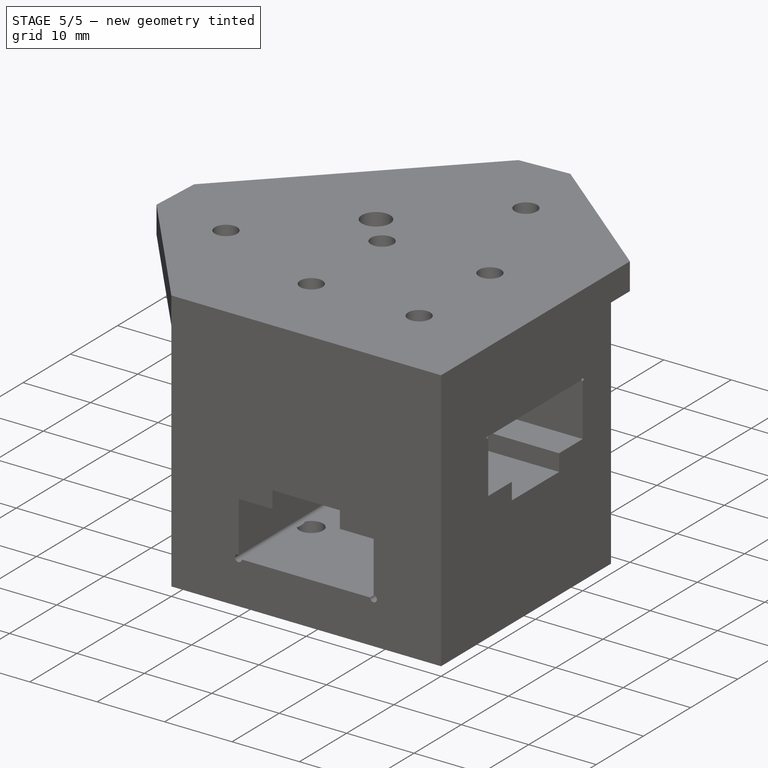
[diagram: stage 5 of 5 — iso view after this stage's code; geometry added in this stage tinted green]
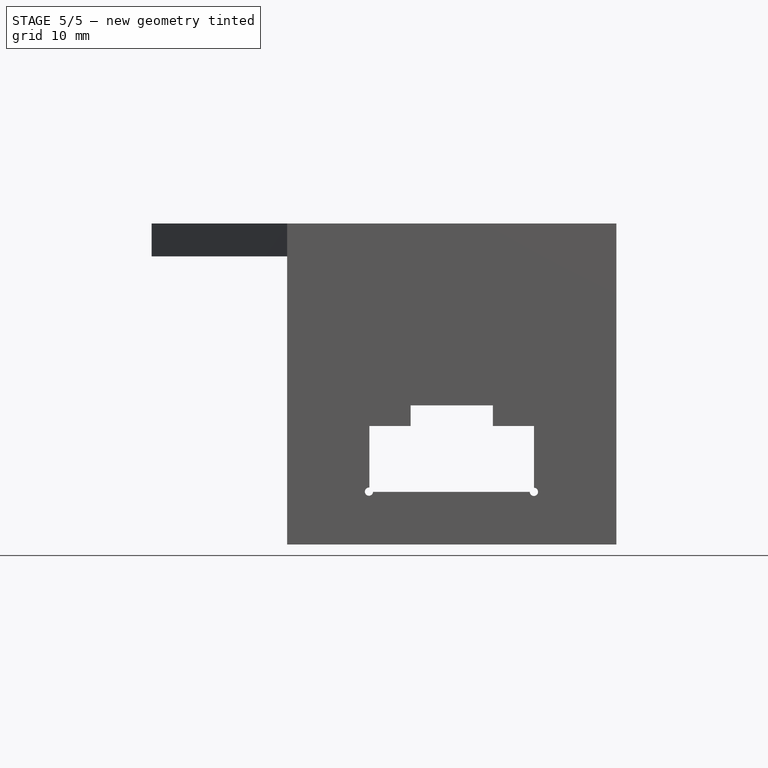
[diagram: stage 5 of 5 — front view after this stage's code; geometry added in this stage tinted green]
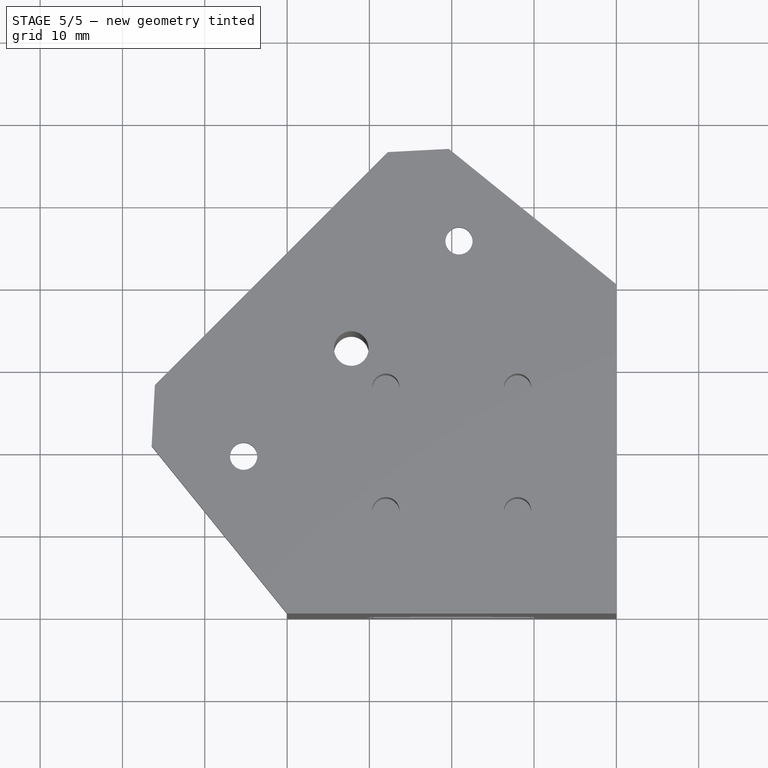
[diagram: stage 5 of 5 — top view after this stage's code; geometry added in this stage tinted green]
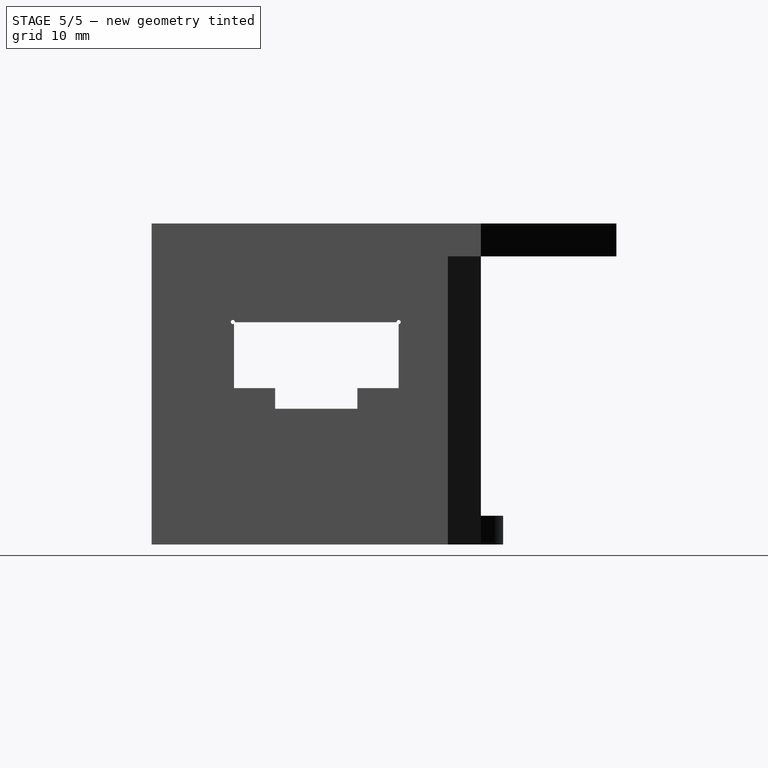
[diagram: stage 5 of 5 — right view after this stage's code; geometry added in this stage tinted green]
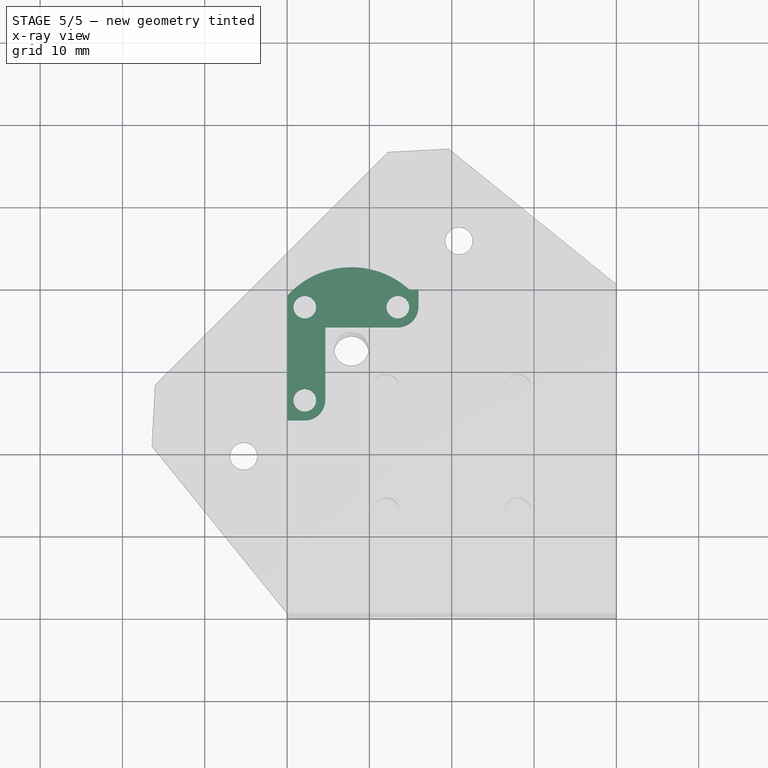
[diagram: stage 5 of 5 — x-ray composite at the top view; earlier geometry ghosted, this stage's added geometry solid]
FEATURE [Sketcher::SketchObject] Sketch022  label="VoronHoleRelif"
  FullyConstrained = false
  MapMode = 5
  Placement = pos=(0,0,-16) rot=(0,0,1;0rad)
  Support = -> [Pocket009]
  sketch-geometry (8):
    g0: ArcOfCircle CenterX=-17.8544 CenterY=6.54074 CenterZ=0 NormalX=0 NormalY=0 NormalZ=1 AngleXU=0 Radius=2.5 StartAngle=4.71239 EndAngle=6.28319
    g1: ArcOfCircle CenterX=-6.54074 CenterY=17.8544 CenterZ=0 NormalX=0 NormalY=0 NormalZ=1 AngleXU=0 Radius=2.5 StartAngle=4.71239 EndAngle=6.28319
    g2: LineSegment StartX=-22.2344 StartY=4.04074 StartZ=0 EndX=-17.8544 EndY=4.04074 EndZ=0
    g3: LineSegment StartX=-22.2344 StartY=22.9844 StartZ=0 EndX=-4.04074 EndY=22.9844 EndZ=0
    g4: LineSegment StartX=-4.04074 StartY=22.9844 StartZ=0 EndX=-4.04074 EndY=17.8544 EndZ=0
    g5: LineSegment StartX=-15.3544 StartY=6.54074 StartZ=0 EndX=-15.3544 EndY=15.3544 EndZ=0
    g6: LineSegment StartX=-15.3544 StartY=15.3544 StartZ=0 EndX=-6.54074 EndY=15.3544 EndZ=0
    g7: LineSegment StartX=-22.2344 StartY=4.04074 StartZ=0 EndX=-22.2344 EndY=22.9844 EndZ=0
  constraints (18):
    c: Horizontal(g2)
    c: Coincident(g3,g4)
    c: Tangent(g4,g1) = 1.5708
    c: Tangent(g2,g0) = -1.5708
    c: Diameter(g0) = 5
    c: Equal(g0,g1)
    c: Tangent(g0,g5) = -1.5708
    c: Coincident(g5,g6)
    c: Tangent(g1,g6) = -1.5708
    c: Horizontal(g6)
    c: Vertical(g5)
    c: Vertical(g4)
    c: Horizontal(g3)
    c: Coincident(g7,g2)
    c: Coincident(g7,g3)
    c: Vertical(g7)
    c: Distance(g2) = 4.38
    c: Distance(g4) = 5.13
FEATURE [PartDesign::Pocket] Pocket010
  BaseFeature = -> Pocket009
  Length = 15.5
  Length2 = 16
  Profile = -> Sketch022
  Type = 4
FEATURE [PartDesign::Pocket] Pocket011
  BaseFeature = -> Pocket010
  Length = 5
  Length2 = 100
  Profile = -> Sketch017
  Type = 1
FEATURE [PartDesign::Chamfer] Chamfer
  Angle = 45
  Base = -> Pocket011 [Edge100,Edge205]
  BaseFeature = -> Pocket011
  ChamferType = 0
  FlipDirection = false
  Size = 5
  Size2 = 1
  SupportTransform = false
FEATURE [PartDesign::Body] Body
  Group = -> [Sketch,Pad,Sketch001,Pocket,Sketch003,Sketch004,Sketch007,Sketch008,Sketch009,Sketch010,Sketch015,Sketch016,Sketch017,Sketch019,Sketch021,Pocket001,Pocket002,Pocket003,Sketch022,Sketch024,Pocket004,Sketch025,Pocket005,Pad001,Pocket006,Pocket007,Pocket008,Pocket009,Pocket010,Pocket011,Chamfer]
  Origin = -> Origin
  Tip = -> Chamfer
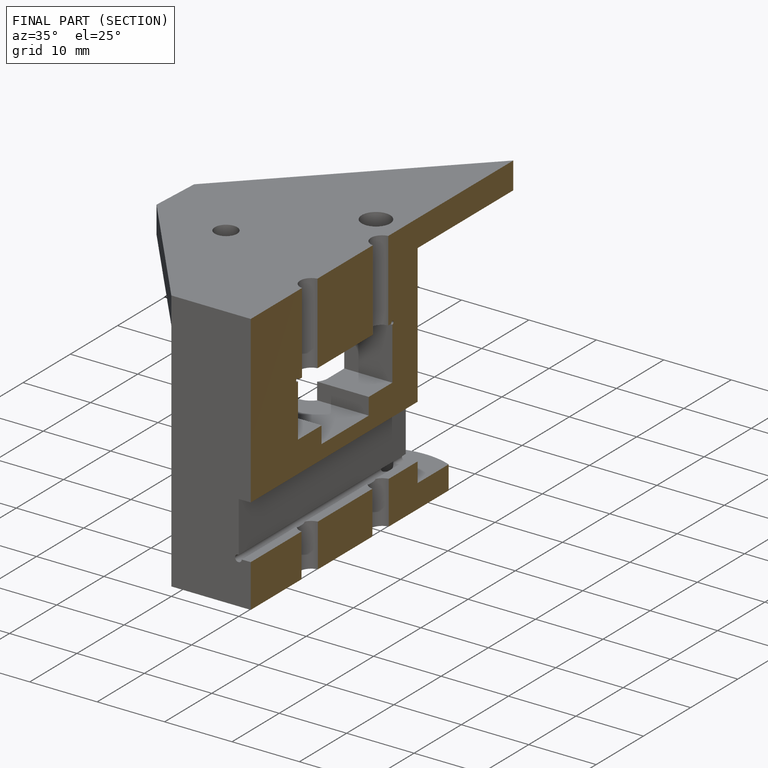
[diagram: finished part — half-section view (interior)]
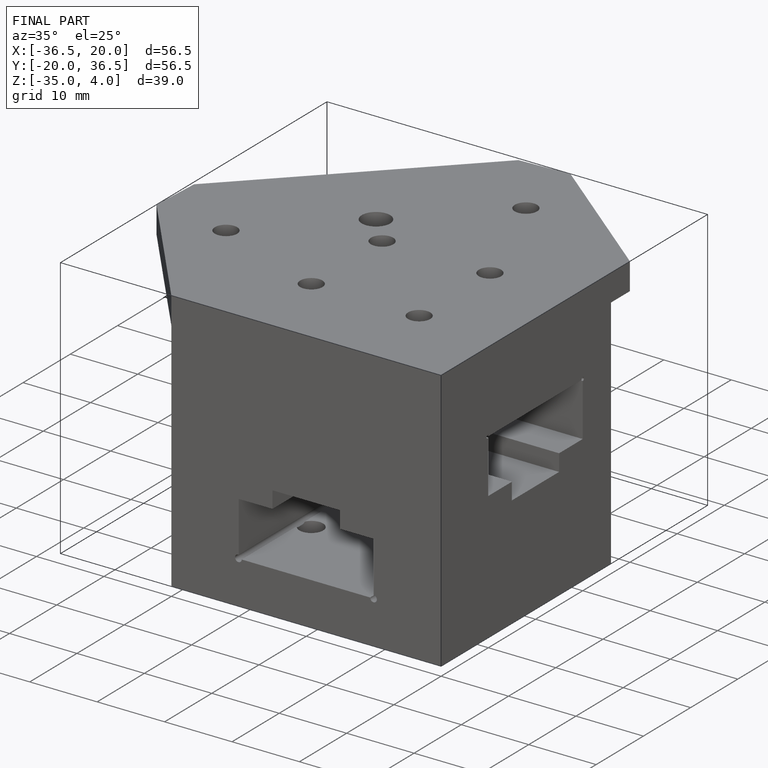
[diagram: finished part — iso view with bounding-box wireframe]
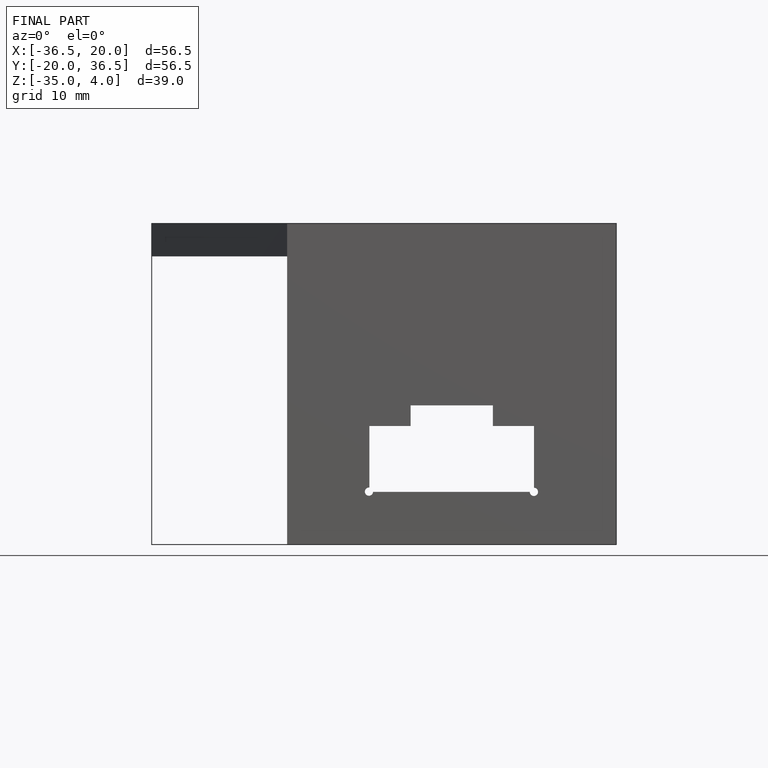
[diagram: finished part — front view with bounding-box wireframe]
